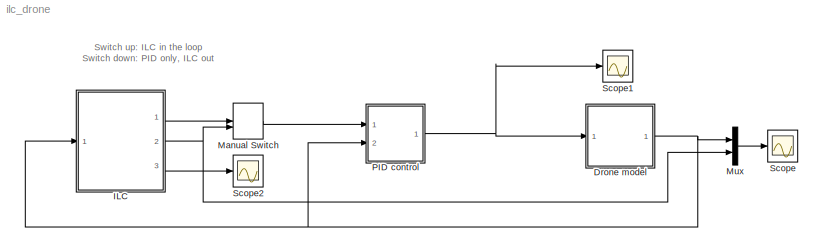
MODEL ilc_drone
KIND model
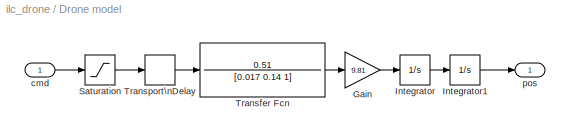
BLOCK [SubSystem] Drone model
  Ports = [1, 1]
  RequestExecContextInheritance = off
  SID = 56
BLOCK [Gain] Drone model/Gain
  Gain = 9.81
  OutDataTypeStr = Inherit: Inherit via internal rule
  ParamDataTypeStr = Inherit: Inherit via internal rule
  SID = 43
  SaturateOnIntegerOverflow = off
BLOCK [Integrator] Drone model/Integrator
  Ports = [1, 1]
  SID = 38
BLOCK [Integrator] Drone model/Integrator1
  Ports = [1, 1]
  SID = 39
BLOCK [Saturate] Drone model/Saturation
  InputPortMap = u0
  LowerLimit = -0.37
  Ports = [1, 1]
  SID = 48
  UpperLimit = 0.37
BLOCK [TransferFcn] Drone model/Transfer Fcn
  Denominator = [0.017 0.14 1]
  Numerator = 0.51
  SID = 1
BLOCK [TransportDelay] Drone model/Transport\nDelay
  DelayTime = 0.75
  Ports = [1, 1]
  SID = 23
BLOCK [Inport] Drone model/cmd
  IconDisplay = Port number
  SID = 57
BLOCK [Outport] Drone model/pos
  IconDisplay = Port number
  SID = 58
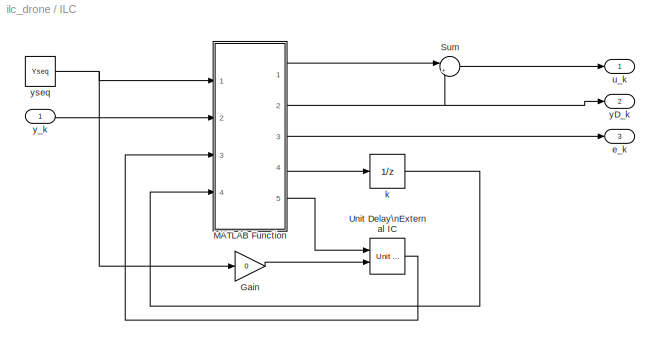
BLOCK [SubSystem] ILC
  Description = Iterative Learning Control
  Ports = [1, 3]
  RequestExecContextInheritance = off
  SID = 4
  SystemSampleTime = dt
  TreatAsAtomicUnit = on
BLOCK [Gain] ILC/Gain
  Gain = 0
  OutDataTypeStr = Inherit: Inherit via internal rule
  ParamDataTypeStr = Inherit: Inherit via internal rule
  SID = 17
  SaturateOnIntegerOverflow = off
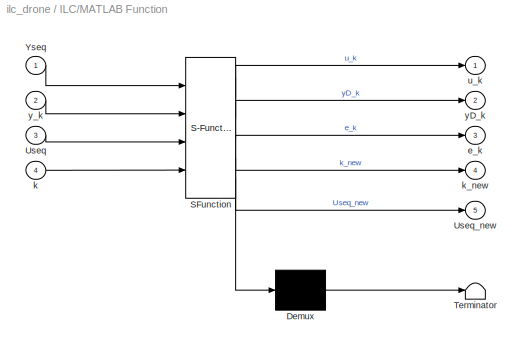
BLOCK [SubSystem] ILC/MATLAB Function
  ErrorFcn = Stateflow.Translate.translate
  PermitHierarchicalResolution = ExplicitOnly
  Ports = [4, 5]
  RequestExecContextInheritance = off
  SFBlockType = MATLAB Function
  SID = 13
  TreatAsAtomicUnit = on
BLOCK [Demux] ILC/MATLAB Function/ Demux 
  Outputs = 1
  Ports = [1, 1]
  SID = 13::35
BLOCK [S-Function] ILC/MATLAB Function/ SFunction 
  EnableBusSupport = on
  FunctionName = sf_sfun
  Parameters = gamma,offset
  PortCounts = [4 6]
  Ports = [4, 6]
  SFcnIsStateOwnerBlock = off
  SFunctionDeploymentMode = off
  SID = 13::34
  Tag = Stateflow S-Function ilc_drone 2
BLOCK [Terminator] ILC/MATLAB Function/ Terminator 
  SID = 13::36
BLOCK [Inport] ILC/MATLAB Function/Useq
  IconDisplay = Port number
  Port = 3
  SID = 13::24
BLOCK [Outport] ILC/MATLAB Function/Useq_new
  IconDisplay = Port number
  Port = 5
  SID = 13::29
BLOCK [Inport] ILC/MATLAB Function/Yseq
  IconDisplay = Port number
  SID = 13::1
BLOCK [Outport] ILC/MATLAB Function/e_k
  IconDisplay = Port number
  Port = 3
  SID = 13::38
BLOCK [Inport] ILC/MATLAB Function/k
  IconDisplay = Port number
  Port = 4
  SID = 13::25
BLOCK [Outport] ILC/MATLAB Function/k_new
  IconDisplay = Port number
  Port = 4
  SID = 13::28
BLOCK [Outport] ILC/MATLAB Function/u_k
  IconDisplay = Port number
  SID = 13::27
BLOCK [Outport] ILC/MATLAB Function/yD_k
  IconDisplay = Port number
  Port = 2
  SID = 13::5
BLOCK [Inport] ILC/MATLAB Function/y_k
  IconDisplay = Port number
  Port = 2
  SID = 13::23
BLOCK [Sum] ILC/Sum
  IconShape = round
  InputSameDT = off
  Inputs = |++
  OutDataTypeStr = Inherit: Inherit via internal rule
  Ports = [2, 1]
  SID = 14
  SaturateOnIntegerOverflow = off
BLOCK [Reference] ILC/Unit Delay\nExternal IC  REF=simulink_need_slupdate/Unit Delay\nExternal IC
  Ports = [2, 1]
  SID = 16
  SourceBlock = simulink_need_slupdate/Unit Delay\nExternal IC
  SourceProductBaseCode = SL
  SourceProductName = Simulink
  SourceType = Unit Delay External Initial Condition
  tsamp = -1
BLOCK [Outport] ILC/e_k
  IconDisplay = Port number
  Port = 3
  SID = 59
BLOCK [UnitDelay] ILC/k
  InitialCondition = 1
  InputProcessing = Elements as channels (sample based)
  SID = 11
  SampleTime = -1
BLOCK [Outport] ILC/u_k
  IconDisplay = Port number
  SID = 6
BLOCK [Outport] ILC/yD_k
  IconDisplay = Port number
  Port = 2
  SID = 7
BLOCK [Inport] ILC/y_k
  IconDisplay = Port number
  SID = 8
BLOCK [Constant] ILC/yseq
  SID = 9
  Value = Yseq
BLOCK [ManualSwitch] Manual Switch
  SID = 50
BLOCK [Mux] Mux
  DisplayOption = bar
  Inputs = 2
  Ports = [2, 1]
  SID = 10
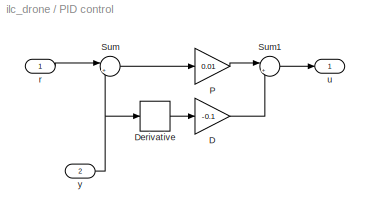
BLOCK [SubSystem] PID control
  Ports = [2, 1]
  RequestExecContextInheritance = off
  SID = 52
BLOCK [Gain] PID control/D
  Gain = -0.1
  OutDataTypeStr = Inherit: Inherit via internal rule
  ParamDataTypeStr = Inherit: Inherit via internal rule
  SID = 49
  SaturateOnIntegerOverflow = off
BLOCK [Derivative] PID control/Derivative
  CoefficientInTFapproximation = 0.001
  SID = 46
BLOCK [Gain] PID control/P
  Gain = 0.01
  OutDataTypeStr = Inherit: Inherit via internal rule
  ParamDataTypeStr = Inherit: Inherit via internal rule
  SID = 45
  SaturateOnIntegerOverflow = off
BLOCK [Sum] PID control/Sum
  IconShape = round
  InputSameDT = off
  Inputs = |+-
  OutDataTypeStr = Inherit: Inherit via internal rule
  Ports = [2, 1]
  SID = 41
  SaturateOnIntegerOverflow = off
BLOCK [Sum] PID control/Sum1
  IconShape = round
  InputSameDT = off
  Inputs = |++
  OutDataTypeStr = Inherit: Inherit via internal rule
  Ports = [2, 1]
  SID = 47
  SaturateOnIntegerOverflow = off
BLOCK [Inport] PID control/r
  IconDisplay = Port number
  SID = 53
BLOCK [Outport] PID control/u
  IconDisplay = Port number
  SID = 55
BLOCK [Inport] PID control/y
  IconDisplay = Port number
  Port = 2
  SID = 54
BLOCK [Scope] Scope
  Floating = off
  NumInputPorts = 1
  Ports = [1]
  SID = 3
  ScopeSpecificationString = Simulink.scopes.TimeScopeBlockCfg('CurrentConfiguration', extmgr.ConfigurationSet(extmgr.Configuration('Core','General UI',true),extmgr.Configuration('Core','Source UI',true),extmgr.Configuration('Sources','WiredSimulink',true,'DataLoggingSaveFormat','StructureWithTime','DataLoggingDecimation','1','DataLoggingDecimateData',true),extmgr.Configuration('Visuals','Time Domain',true,'SerializedDisplays...<+1694ch>
BLOCK [Scope] Scope1
  Floating = off
  NumInputPorts = 1
  Ports = [1]
  SID = 42
  ScopeSpecificationString = Simulink.scopes.TimeScopeBlockCfg('CurrentConfiguration', extmgr.ConfigurationSet(extmgr.Configuration('Core','General UI',true),extmgr.Configuration('Core','Source UI',true),extmgr.Configuration('Sources','WiredSimulink',true,'DataLoggingSaveFormat','StructureWithTime','DataLoggingDecimation','1','DataLoggingDecimateData',true,'DataLoggingVariableName','ScopeData1'),extmgr.Configuration('Visuals'...<+1719ch>
BLOCK [Scope] Scope2
  Floating = off
  NumInputPorts = 1
  Ports = [1]
  SID = 60
  ScopeSpecificationString = Simulink.scopes.TimeScopeBlockCfg('CurrentConfiguration', extmgr.ConfigurationSet(extmgr.Configuration('Core','General UI',true),extmgr.Configuration('Core','Source UI',true),extmgr.Configuration('Sources','WiredSimulink',true,'DataLoggingSaveFormat','StructureWithTime','DataLoggingDecimation','1','DataLoggingDecimateData',true,'DataLoggingVariableName','ScopeData2'),extmgr.Configuration('Visuals'...<+1715ch>
ANNOTATION (root): Switch up: ILC in the loop\nSwitch down: PID only, ILC out
LINE Drone model/Gain:1 -> Drone model/Integrator:1
LINE Drone model/Integrator1:1 -> Drone model/pos:1
LINE Drone model/Integrator:1 -> Drone model/Integrator1:1
LINE Drone model/Saturation:1 -> Drone model/Transport\nDelay:1
LINE Drone model/Transfer Fcn:1 -> Drone model/Gain:1
LINE Drone model/Transport\nDelay:1 -> Drone model/Transfer Fcn:1
LINE Drone model/cmd:1 -> Drone model/Saturation:1
NET Drone model:1 -> ILC:1, Mux:1, PID control:2
LINE ILC/Gain:1 -> ILC/Unit Delay\nExternal IC:2
LINE ILC/MATLAB Function/ Demux :1 -> ILC/MATLAB Function/ Terminator :1
LINE ILC/MATLAB Function/ SFunction :1 -> ILC/MATLAB Function/ Demux :1
LINE ILC/MATLAB Function/ SFunction :2 -> ILC/MATLAB Function/u_k:1
LINE ILC/MATLAB Function/ SFunction :3 -> ILC/MATLAB Function/yD_k:1
LINE ILC/MATLAB Function/ SFunction :4 -> ILC/MATLAB Function/e_k:1
LINE ILC/MATLAB Function/ SFunction :5 -> ILC/MATLAB Function/k_new:1
LINE ILC/MATLAB Function/ SFunction :6 -> ILC/MATLAB Function/Useq_new:1
LINE ILC/MATLAB Function/Useq:1 -> ILC/MATLAB Function/ SFunction :3
LINE ILC/MATLAB Function/Yseq:1 -> ILC/MATLAB Function/ SFunction :1
LINE ILC/MATLAB Function/k:1 -> ILC/MATLAB Function/ SFunction :4
LINE ILC/MATLAB Function/y_k:1 -> ILC/MATLAB Function/ SFunction :2
LINE ILC/MATLAB Function:1 -> ILC/Sum:1
NET ILC/MATLAB Function:2 -> ILC/Sum:2, ILC/yD_k:1
LINE ILC/MATLAB Function:3 -> ILC/e_k:1
LINE ILC/MATLAB Function:4 -> ILC/k:1
LINE ILC/MATLAB Function:5 -> ILC/Unit Delay\nExternal IC:1
LINE ILC/Sum:1 -> ILC/u_k:1
LINE ILC/Unit Delay\nExternal IC:1 -> ILC/MATLAB Function:3
LINE ILC/k:1 -> ILC/MATLAB Function:4
LINE ILC/y_k:1 -> ILC/MATLAB Function:2
NET ILC/yseq:1 -> ILC/Gain:1, ILC/MATLAB Function:1
LINE ILC:1 -> Manual Switch:1
NET ILC:2 -> Manual Switch:2, Mux:2
LINE ILC:3 -> Scope2:1
LINE Manual Switch:1 -> PID control:1
LINE Mux:1 -> Scope:1
LINE PID control/D:1 -> PID control/Sum1:2
LINE PID control/Derivative:1 -> PID control/D:1
LINE PID control/P:1 -> PID control/Sum1:1
LINE PID control/Sum1:1 -> PID control/u:1
LINE PID control/Sum:1 -> PID control/P:1
LINE PID control/r:1 -> PID control/Sum:1
NET PID control/y:1 -> PID control/Derivative:1, PID control/Sum:2
NET PID control:1 -> Drone model:1, Scope1:1
note: NET lines group one-source signal fan-out (src -> all destinations, sorted); 1:1 wires keep LINE
CHART ILC/MATLAB Function states=1 transitions=1
  STATE_LABEL 'eML_blk_kernel()'
